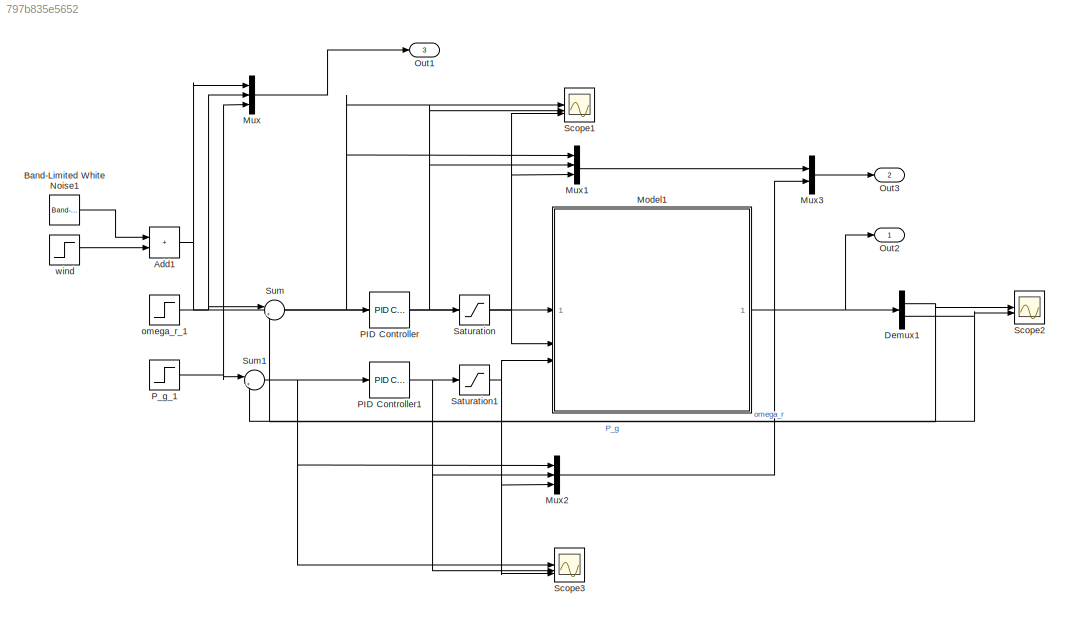
MODEL slx_797b835e5652
KIND model
CONFIG AbsTol = auto
CONFIG EnableMultiTasking = off
CONFIG FixedStep = auto
CONFIG MaxStep = auto
CONFIG MinStep = auto
CONFIG RelTol = 1e-3
CONFIG SampleTimeConstraint = Unconstrained
CONFIG SolverName = VariableStepAuto
CONFIG StartTime = 0.0
CONFIG StopTime = 1500
BLOCK [Sum] Add1
  IconShape = rectangular
BLOCK [Reference] Band-Limited White Noise1  REF=simulink/Sources/Band-Limited
White Noise
  SourceBlock = simulink/Sources/Band-Limited\nWhite Noise
  SourceType = Band-Limited White Noise.
BLOCK [Demux] Demux1
  Outputs = 2
BLOCK [ModelReference] Model1
  ModelNameDialog = transfer_function_structured.slx
  ModelReferenceVersion = 1.2
BLOCK [Mux] Mux
  DisplayOption = bar
  Inputs = 3
BLOCK [Mux] Mux1
  DisplayOption = bar
  Inputs = 3
BLOCK [Mux] Mux2
  DisplayOption = bar
  Inputs = 3
BLOCK [Mux] Mux3
  DisplayOption = bar
  Inputs = 2
BLOCK [Outport] Out1
  Port = 3
BLOCK [Outport] Out2
  SignalName = output
BLOCK [Outport] Out3
  Port = 2
BLOCK [Reference] PID Controller  REF=slpidlib/PID Controller
  LibrarySourceBlock = simulink/Continuous/PID Controller
  SourceBlock = slpidlib/PID Controller
  SourceType = PID 1dof
BLOCK [Reference] PID Controller1  REF=slpidlib/PID Controller
  LibrarySourceBlock = simulink/Continuous/PID Controller
  SourceBlock = slpidlib/PID Controller
  SourceType = PID 1dof
BLOCK [Step] P_g_1
  After = simP.Pg_final
  SampleTime = 0
  Time = simP.Pg_t
BLOCK [Saturate] Saturation
  LowerLimit = simP.beta_sat(2)
  UpperLimit = simP.beta_sat(1)
BLOCK [Saturate] Saturation1
  LowerLimit = simP.alpha_sat(2)
  UpperLimit = simP.alpha_sat(1)
BLOCK [Scope] Scope1
  Floating = off
  NumInputPorts = 3
  ScopeSpecificationString = Simulink.scopes.TimeScopeBlockCfg('CurrentConfiguration', extmgr.ConfigurationSet(extmgr.Configuration('Core','General UI',true),extmgr.Configuration('Core','Source UI',true),extmgr.Configuration('Sources','WiredSimulink',true,'DataLoggingVariableName','ScopeData1'),extmgr.Configuration('Visuals','Time Domain',true,'SerializedDisplays',{struct('MinYLimReal','-239.85207','MaxYLimReal','158.66862','...<+2806ch>
BLOCK [Scope] Scope2
  Floating = off
  NumInputPorts = 2
  ScopeSpecificationString = Simulink.scopes.TimeScopeBlockCfg('CurrentConfiguration', extmgr.ConfigurationSet(extmgr.Configuration('Core','General UI',true),extmgr.Configuration('Core','Source UI',true),extmgr.Configuration('Sources','WiredSimulink',true),extmgr.Configuration('Visuals','Time Domain',true,'SerializedDisplays',{struct('MinYLimReal','-378.26861','MaxYLimReal','71.48518','YLabelReal','','MinYLimMag',' 0.00000','...<+2043ch>
BLOCK [Scope] Scope3
  Floating = off
  NumInputPorts = 3
  ScopeSpecificationString = Simulink.scopes.TimeScopeBlockCfg('CurrentConfiguration', extmgr.ConfigurationSet(extmgr.Configuration('Core','General UI',true),extmgr.Configuration('Core','Source UI',true),extmgr.Configuration('Sources','WiredSimulink',true,'DataLoggingVariableName','ScopeData1'),extmgr.Configuration('Visuals','Time Domain',true,'SerializedDisplays',{struct('MinYLimReal','-0.07205','MaxYLimReal','0.08293','YLab...<+2799ch>
BLOCK [Sum] Sum
  Inputs = |+-
BLOCK [Sum] Sum1
  Inputs = |+-
BLOCK [Step] omega_r_1
  After = simP.omega_final
  SampleTime = 0
  Time = simP.omega_t
BLOCK [Step] wind
  After = simP.wind_final
  SampleTime = 0
  Time = simP.wind_t
NET Add1:1 -> Model1:1, Mux:1
LINE Band-Limited White Noise1:1 -> Add1:1
NET Demux1:1 -> Scope2:1, Sum:2
NET Demux1:2 -> Scope2:2, Sum1:2
NET Model1:1 -> Demux1:1, Out2:1
LINE Mux1:1 -> Mux3:1
LINE Mux2:1 -> Mux3:2
LINE Mux3:1 -> Out3:1
LINE Mux:1 -> Out1:1
NET PID Controller1:1 -> Mux2:2, Saturation1:1, Scope3:2
NET PID Controller:1 -> Mux1:2, Saturation:1, Scope1:2
NET P_g_1:1 -> Mux:3, Sum1:1
NET Saturation1:1 -> Model1:3, Mux2:3, Scope3:3
NET Saturation:1 -> Model1:2, Mux1:3, Scope1:3
NET Sum1:1 -> Mux2:1, PID Controller1:1, Scope3:1
NET Sum:1 -> Mux1:1, PID Controller:1, Scope1:1
NET omega_r_1:1 -> Mux:2, Sum:1
LINE wind:1 -> Add1:2
note: NET lines group one-source signal fan-out (src -> all destinations, sorted); 1:1 wires keep LINE
